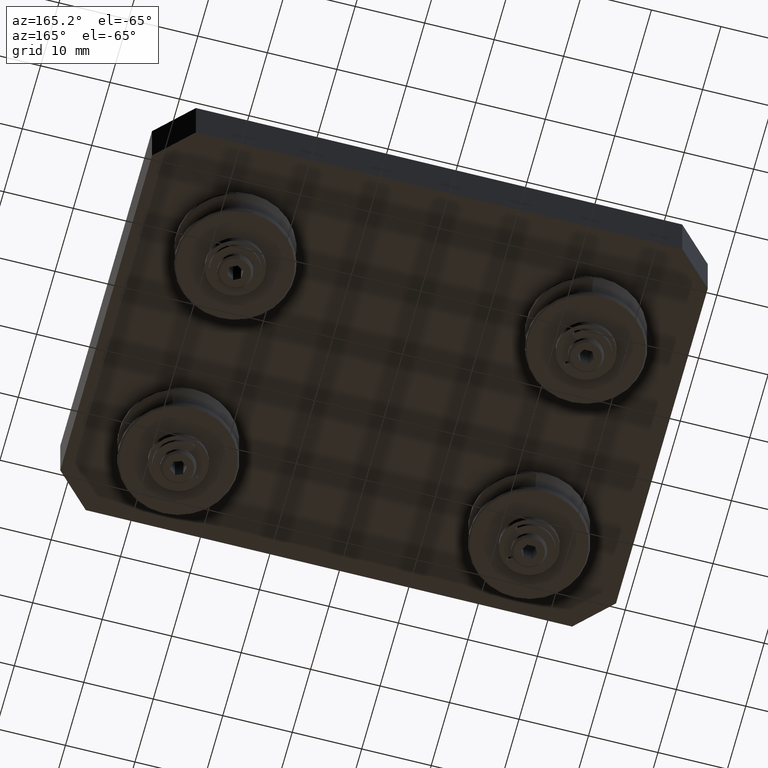
[diagram: clean part render]
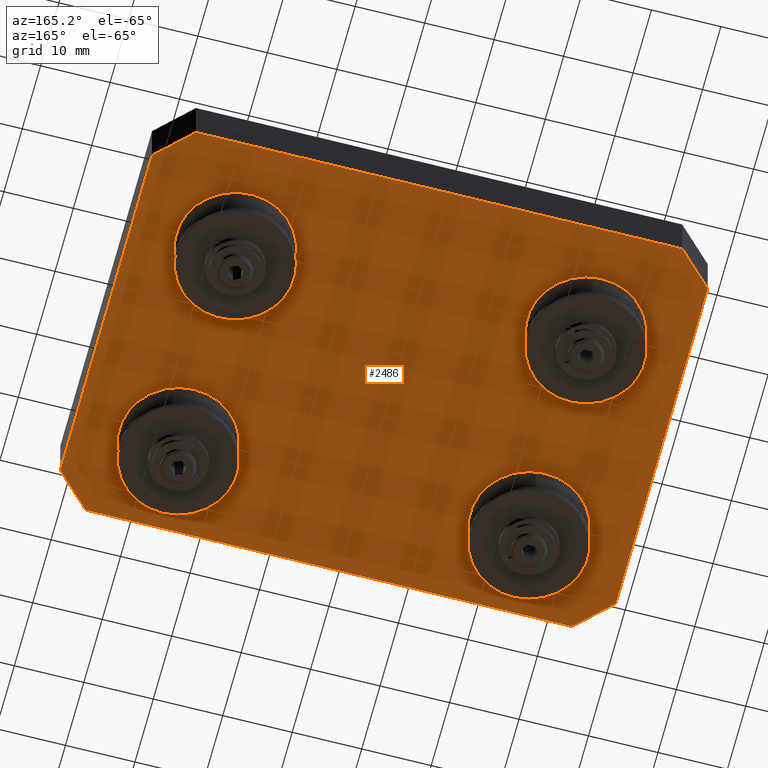
[diagram: same view with one face highlighted and labeled with its STEP entity id]
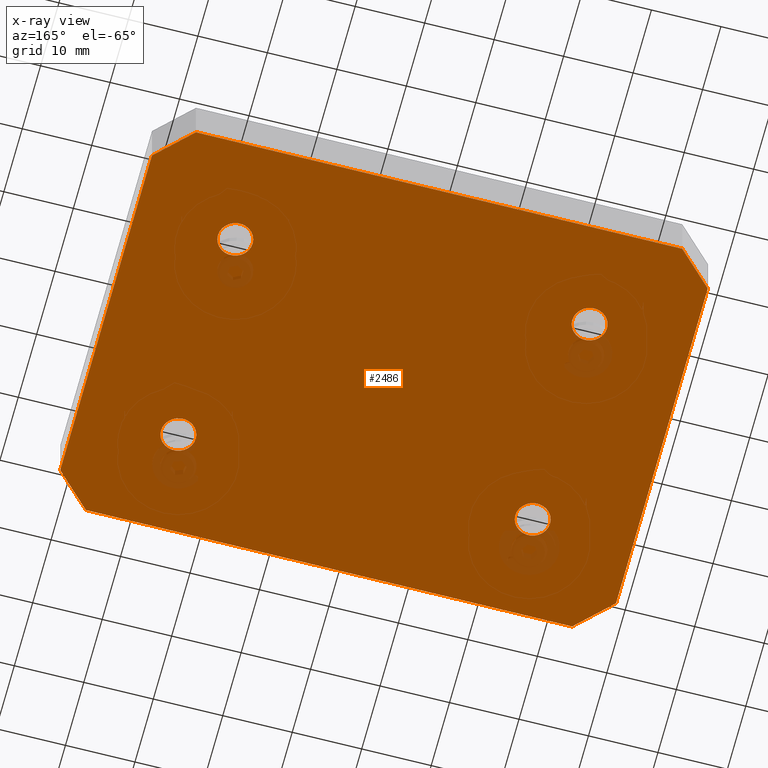
[diagram: x-ray of the same camera — body ghosted, the highlighted face saturated]
A machine part, auxiliary view. The second image highlights one B-rep face of the part: STEP entity #2486.
The next image is the same camera in x-ray: the body ghosted, the highlighted face saturated — about 3% of this face is hidden behind the body in this view.
In plain terms, the highlighted planar face has unit normal (0, 0, 1).
Its self-contained STEP definition (entity closure, byte-faithful):
#176=FACE_BOUND('',#501,.T.);
#177=FACE_BOUND('',#502,.T.);
#178=FACE_BOUND('',#503,.T.);
#179=FACE_BOUND('',#504,.T.);
#206=CIRCLE('',#2850,2.5);
#207=CIRCLE('',#2851,2.5);
#208=CIRCLE('',#2852,2.5);
#209=CIRCLE('',#2853,2.5);
#341=FACE_OUTER_BOUND('',#500,.T.);
#500=EDGE_LOOP('',(#1687,#1688,#1689,#1690,#1691,#1692,#1693,#1694));
#501=EDGE_LOOP('',(#1695));
#502=EDGE_LOOP('',(#1696));
#503=EDGE_LOOP('',(#1697));
#504=EDGE_LOOP('',(#1698));
#690=LINE('',#4017,#898);
#692=LINE('',#4021,#900);
#693=LINE('',#4023,#901);
#694=LINE('',#4025,#902);
#695=LINE('',#4027,#903);
#696=LINE('',#4029,#904);
#697=LINE('',#4031,#905);
#698=LINE('',#4032,#906);
#898=VECTOR('',#3172,10.);
#900=VECTOR('',#3176,10.);
#901=VECTOR('',#3177,10.);
#902=VECTOR('',#3178,10.);
#903=VECTOR('',#3179,10.);
#904=VECTOR('',#3180,10.);
#905=VECTOR('',#3181,10.);
#906=VECTOR('',#3182,10.);
#1106=VERTEX_POINT('',#4014);
#1107=VERTEX_POINT('',#4016);
#1108=VERTEX_POINT('',#4020);
#1109=VERTEX_POINT('',#4022);
#1110=VERTEX_POINT('',#4024);
#1111=VERTEX_POINT('',#4026);
#1112=VERTEX_POINT('',#4028);
#1113=VERTEX_POINT('',#4030);
#1114=VERTEX_POINT('',#4033);
#1115=VERTEX_POINT('',#4035);
#1116=VERTEX_POINT('',#4037);
#1117=VERTEX_POINT('',#4039);
#1331=EDGE_CURVE('',#1106,#1107,#690,.T.);
#1333=EDGE_CURVE('',#1106,#1108,#692,.T.);
#1334=EDGE_CURVE('',#1109,#1108,#693,.T.);
#1335=EDGE_CURVE('',#1109,#1110,#694,.T.);
#1336=EDGE_CURVE('',#1111,#1110,#695,.T.);
#1337=EDGE_CURVE('',#1111,#1112,#696,.T.);
#1338=EDGE_CURVE('',#1113,#1112,#697,.T.);
#1339=EDGE_CURVE('',#1113,#1107,#698,.T.);
#1340=EDGE_CURVE('',#1114,#1114,#206,.T.);
#1341=EDGE_CURVE('',#1115,#1115,#207,.T.);
#1342=EDGE_CURVE('',#1116,#1116,#208,.T.);
#1343=EDGE_CURVE('',#1117,#1117,#209,.T.);
#1687=ORIENTED_EDGE('',*,*,#1331,.F.);
#1688=ORIENTED_EDGE('',*,*,#1333,.T.);
#1689=ORIENTED_EDGE('',*,*,#1334,.F.);
#1690=ORIENTED_EDGE('',*,*,#1335,.T.);
#1691=ORIENTED_EDGE('',*,*,#1336,.F.);
#1692=ORIENTED_EDGE('',*,*,#1337,.T.);
#1693=ORIENTED_EDGE('',*,*,#1338,.F.);
#1694=ORIENTED_EDGE('',*,*,#1339,.T.);
#1695=ORIENTED_EDGE('',*,*,#1340,.T.);
#1696=ORIENTED_EDGE('',*,*,#1341,.T.);
#1697=ORIENTED_EDGE('',*,*,#1342,.T.);
#1698=ORIENTED_EDGE('',*,*,#1343,.T.);
#2392=PLANE('',#2849);
#2486=ADVANCED_FACE('',(#341,#176,#177,#178,#179),#2392,.F.);
#2849=AXIS2_PLACEMENT_3D('',#4019,#3174,#3175);
#2850=AXIS2_PLACEMENT_3D('',#4034,#3183,#3184);
#2851=AXIS2_PLACEMENT_3D('',#4036,#3185,#3186);
#2852=AXIS2_PLACEMENT_3D('',#4038,#3187,#3188);
#2853=AXIS2_PLACEMENT_3D('',#4040,#3189,#3190);
#3172=DIRECTION('',(-0.707106781186548,0.707106781186548,0.));
#3174=DIRECTION('center_axis',(0.,0.,1.));
#3175=DIRECTION('ref_axis',(1.,0.,0.));
#3176=DIRECTION('',(0.,-1.,0.));
#3177=DIRECTION('',(0.707106781186548,0.707106781186548,0.));
#3178=DIRECTION('',(-1.,0.,0.));
#3179=DIRECTION('',(0.707106781186548,-0.707106781186548,0.));
#3180=DIRECTION('',(0.,1.,0.));
#3181=DIRECTION('',(-0.707106781186548,-0.707106781186548,0.));
#3182=DIRECTION('',(1.,0.,0.));
#3183=DIRECTION('center_axis',(0.,0.,1.));
#3184=DIRECTION('ref_axis',(1.,0.,0.));
#3185=DIRECTION('center_axis',(0.,0.,1.));
#3186=DIRECTION('ref_axis',(1.,0.,0.));
#3187=DIRECTION('center_axis',(0.,0.,1.));
#3188=DIRECTION('ref_axis',(1.,0.,0.));
#3189=DIRECTION('center_axis',(0.,0.,1.));
#3190=DIRECTION('ref_axis',(1.,0.,0.));
#4014=CARTESIAN_POINT('',(40.,25.,0.));
#4016=CARTESIAN_POINT('',(35.,30.,0.));
#4017=CARTESIAN_POINT('',(35.,30.,0.));
#4019=CARTESIAN_POINT('Origin',(0.,-1.73021770071453E-16,0.));
#4020=CARTESIAN_POINT('',(40.,-25.,0.));
#4021=CARTESIAN_POINT('',(40.,30.,0.));
#4022=CARTESIAN_POINT('',(35.,-30.,0.));
#4023=CARTESIAN_POINT('',(35.,-30.,0.));
#4024=CARTESIAN_POINT('',(-35.,-30.,0.));
#4025=CARTESIAN_POINT('',(40.,-30.,0.));
#4026=CARTESIAN_POINT('',(-40.,-25.,0.));
#4027=CARTESIAN_POINT('',(-35.,-30.,0.));
#4028=CARTESIAN_POINT('',(-40.,25.,0.));
#4029=CARTESIAN_POINT('',(-40.,-30.,0.));
#4030=CARTESIAN_POINT('',(-35.,30.,0.));
#4031=CARTESIAN_POINT('',(-35.,30.,0.));
#4032=CARTESIAN_POINT('',(-40.,30.,0.));
#4033=CARTESIAN_POINT('',(23.,-15.5,0.));
#4034=CARTESIAN_POINT('Origin',(25.5,-15.5,0.));
#4035=CARTESIAN_POINT('',(23.,15.5,0.));
#4036=CARTESIAN_POINT('Origin',(25.5,15.5,0.));
#4037=CARTESIAN_POINT('',(-28.,15.5,0.));
#4038=CARTESIAN_POINT('Origin',(-25.5,15.5,0.));
#4039=CARTESIAN_POINT('',(-28.,-15.5,0.));
#4040=CARTESIAN_POINT('Origin',(-25.5,-15.5,0.));